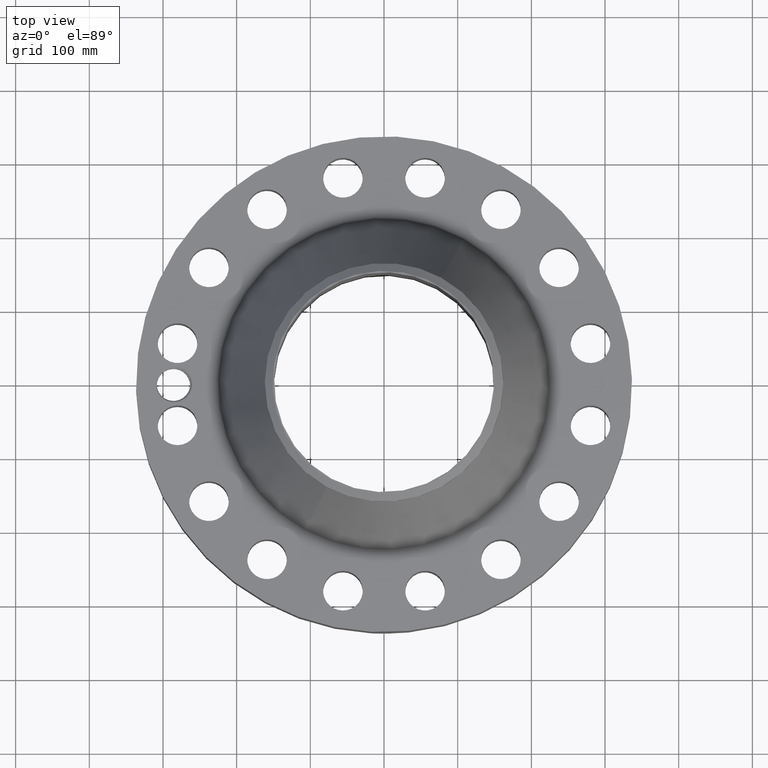
[diagram: clean part render]
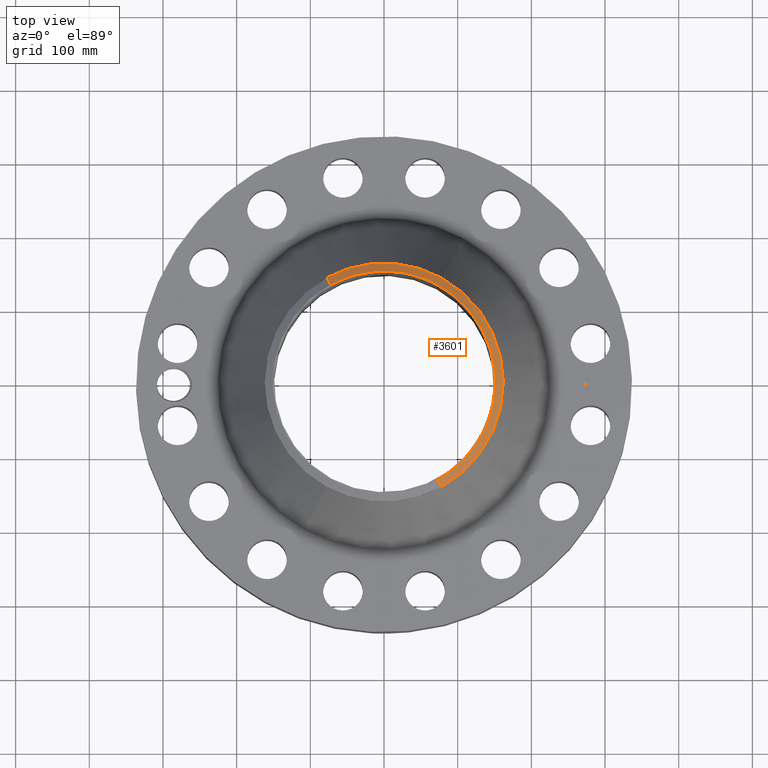
[diagram: same view with one face highlighted and labeled with its STEP entity id]
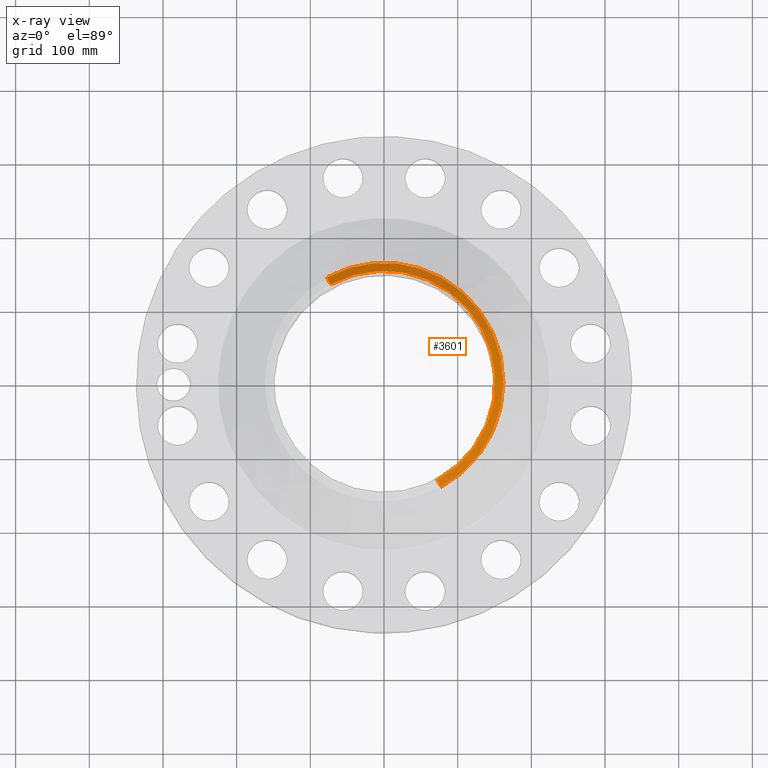
[diagram: x-ray of the same camera — body ghosted, the highlighted face saturated]
A machine part, top view. The second image highlights one B-rep face of the part: STEP entity #3601.
The next image is the same camera in x-ray: the body ghosted, the highlighted face saturated — about 0% of this face is hidden behind the body in this view.
In plain terms, the highlighted conical surface has half-angle 52.5 deg.
Its self-contained STEP definition (entity closure, byte-faithful):
#2701=AXIS2_PLACEMENT_3D('Circle Axis2P3D',#2699,#2700,$) ;
#3546=AXIS2_PLACEMENT_3D('Cone Axis2P3D',#3543,#3544,#3545) ;
#3584=AXIS2_PLACEMENT_3D('Circle Axis2P3D',#3582,#3583,$) ;
#3591=AXIS2_PLACEMENT_3D('Circle Axis2P3D',#3589,#3590,$) ;
#2699=CARTESIAN_POINT('Axis2P3D Location',(0.,0.,11.37)) ;
#2703=CARTESIAN_POINT('Vertex',(2.85437508172,-5.22489854025,11.37)) ;
#2705=CARTESIAN_POINT('Vertex',(-2.85437508172,5.22489854025,11.37)) ;
#3543=CARTESIAN_POINT('Axis2P3D Location',(0.,0.,11.37)) ;
#3548=CARTESIAN_POINT('Line Origine',(2.95535644517,-5.40974368616,11.208377977)) ;
#3552=CARTESIAN_POINT('Vertex',(3.05633780861,-5.59458883207,11.0467559539)) ;
#3555=CARTESIAN_POINT('Line Origine',(-2.95535644517,5.40974368616,11.208377977)) ;
#3559=CARTESIAN_POINT('Vertex',(-3.05633780861,5.59458883207,11.0467559539)) ;
#3582=CARTESIAN_POINT('Axis2P3D Location',(0.,0.,11.0467559539)) ;
#3586=CARTESIAN_POINT('Vertex',(3.05633780861,5.59458883207,11.0467559539)) ;
#3589=CARTESIAN_POINT('Axis2P3D Location',(0.,0.,11.0467559539)) ;
#2700=DIRECTION('Axis2P3D Direction',(0.,0.,-0.0393700787402)) ;
#3544=DIRECTION('Axis2P3D Direction',(-0.,-0.,-0.0393700787402)) ;
#3545=DIRECTION('Axis2P3D XDirection',(-0.0188750212049,0.0345504945626,0.)) ;
#3549=DIRECTION('Vector Direction',(0.014974561121,-0.02741075027,-0.023966985394)) ;
#3556=DIRECTION('Vector Direction',(-0.014974561121,0.02741075027,-0.023966985394)) ;
#3583=DIRECTION('Axis2P3D Direction',(0.,0.,-0.0393700787402)) ;
#3590=DIRECTION('Axis2P3D Direction',(0.,0.,-0.0393700787402)) ;
#3550=VECTOR('Line Direction',#3549,0.0393700787402) ;
#3557=VECTOR('Line Direction',#3556,0.0393700787402) ;
#3595=ORIENTED_EDGE('',*,*,#3561,.F.) ;
#3596=ORIENTED_EDGE('',*,*,#2707,.F.) ;
#3597=ORIENTED_EDGE('',*,*,#3554,.T.) ;
#3598=ORIENTED_EDGE('',*,*,#3588,.T.) ;
#3599=ORIENTED_EDGE('',*,*,#3593,.F.) ;
#3601=ADVANCED_FACE('PartBody',(#3600),#3547,.T.) ;
#2702=CIRCLE('generated circle',#2701,5.9537401575) ;
#3585=CIRCLE('generated circle',#3584,6.37500000003) ;
#3592=CIRCLE('generated circle',#3591,6.37500000003) ;
#3547=CONICAL_SURFACE('Cone',#3546,5.9537401575,0.916297857297) ;
#2707=EDGE_CURVE('',#2704,#2706,#2702,.F.) ;
#3554=EDGE_CURVE('',#2704,#3553,#3551,.T.) ;
#3561=EDGE_CURVE('',#2706,#3560,#3558,.T.) ;
#3588=EDGE_CURVE('',#3553,#3587,#3585,.F.) ;
#3593=EDGE_CURVE('',#3560,#3587,#3592,.T.) ;
#3594=EDGE_LOOP('',(#3595,#3596,#3597,#3598,#3599)) ;
#3600=FACE_OUTER_BOUND('',#3594,.T.) ;
#3551=LINE('Line',#3548,#3550) ;
#3558=LINE('Line',#3555,#3557) ;
#2704=VERTEX_POINT('',#2703) ;
#2706=VERTEX_POINT('',#2705) ;
#3553=VERTEX_POINT('',#3552) ;
#3560=VERTEX_POINT('',#3559) ;
#3587=VERTEX_POINT('',#3586) ;